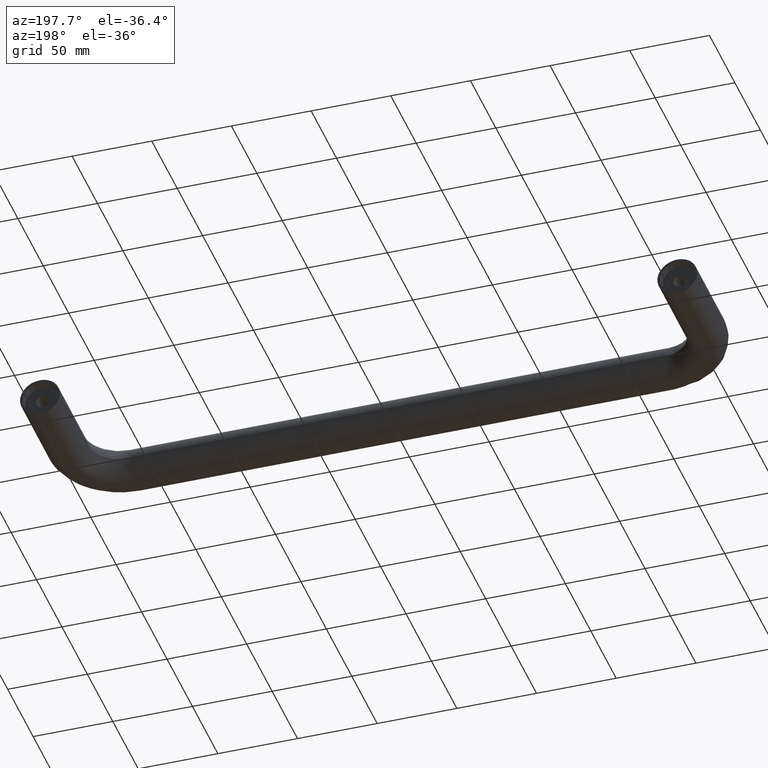
[diagram: clean part render]
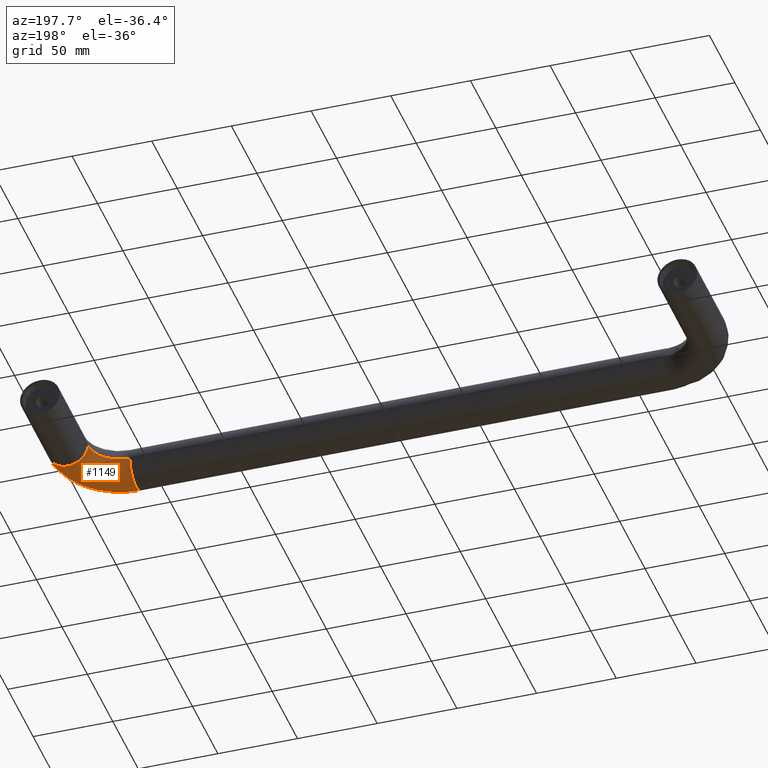
[diagram: same view with one face highlighted and labeled with its STEP entity id]
A machine part, auxiliary view. The second image highlights one B-rep face of the part: STEP entity #1149.
In plain terms, the highlighted face is a freeform B-spline surface patch.
Its self-contained STEP definition (entity closure, byte-faithful):
#698=CARTESIAN_POINT('',(391.395568913528510,-54.999996283961352,-9.067180690720624));
#699=VERTEX_POINT('',#698);
#700=CARTESIAN_POINT('',(387.500000000000000,-55.000000001194060,-8.841173E-016));
#701=VERTEX_POINT('',#700);
#702=CARTESIAN_POINT('',(391.395568913528450,-54.999996283961352,-9.067180690720624));
#703=CARTESIAN_POINT('',(387.500000000000340,-55.000000001155847,-5.370424730694126));
#704=CARTESIAN_POINT('',(387.500000000000000,-55.000000001194060,-8.841173E-016));
#712=(BOUNDED_CURVE()B_SPLINE_CURVE(2,(#702,#703,#704),.UNSPECIFIED.,.F.,.U.)B_SPLINE_CURVE_WITH_KNOTS((3,3),(0.494732677585588,0.666666666666667),.UNSPECIFIED.)CURVE()GEOMETRIC_REPRESENTATION_ITEM()RATIONAL_B_SPLINE_CURVE((0.853699662737177,0.848925101543817,1.0))REPRESENTATION_ITEM(''));
#713=EDGE_CURVE('',#699,#701,#712,.T.);
#778=CARTESIAN_POINT('',(412.499999999987320,-54.999976146165750,-1.530758E-015));
#779=VERTEX_POINT('',#778);
#780=CARTESIAN_POINT('',(412.499999999987320,-54.999976146165750,-1.530758E-015));
#781=CARTESIAN_POINT('',(412.499999999987380,-54.999976146149322,-12.499999999999881));
#782=CARTESIAN_POINT('',(399.999999999993970,-54.999988073625268,-12.499999999999600));
#783=CARTESIAN_POINT('',(395.013006561992480,-54.999992832204789,-12.499999999999490));
#784=CARTESIAN_POINT('',(391.395568913528510,-54.999996283961352,-9.067180690720623));
#792=(BOUNDED_CURVE()B_SPLINE_CURVE(2,(#780,#781,#782,#783,#784),.UNSPECIFIED.,.F.,.U.)B_SPLINE_CURVE_WITH_KNOTS((3,2,3),(0.0,0.333333333333333,0.494732677585588),.UNSPECIFIED.)CURVE()GEOMETRIC_REPRESENTATION_ITEM()RATIONAL_B_SPLINE_CURVE((1.0,0.707106781186547,1.0,0.858181679642730,0.853699662737177))REPRESENTATION_ITEM(''));
#793=EDGE_CURVE('',#779,#699,#792,.T.);
#1005=CARTESIAN_POINT('',(367.500000000913420,-99.999999999999972,-1.530758E-015));
#1006=VERTEX_POINT('',#1005);
#1007=CARTESIAN_POINT('',(367.500000000913420,-99.999999999999972,-1.530758E-015));
#1008=CARTESIAN_POINT('',(412.500023853837320,-99.999999999086597,-1.530758E-015));
#1009=CARTESIAN_POINT('',(412.499999999987320,-54.999976146165757,-1.530758E-015));
#1017=(BOUNDED_CURVE()B_SPLINE_CURVE(2,(#1007,#1008,#1009),.UNSPECIFIED.,.F.,.U.)B_SPLINE_CURVE_WITH_KNOTS((3,3),(-1.734750791637311,-0.265248657532898),.UNSPECIFIED.)CURVE()GEOMETRIC_REPRESENTATION_ITEM()RATIONAL_B_SPLINE_CURVE((0.889029723568967,0.628638848619577,0.889029918779442))REPRESENTATION_ITEM(''));
#1018=EDGE_CURVE('',#1006,#779,#1017,.T.);
#1023=CARTESIAN_POINT('',(367.500000000067080,-75.0,-8.841173E-016));
#1024=VERTEX_POINT('',#1023);
#1025=CARTESIAN_POINT('',(367.500000000066960,-74.999999999999986,-1.768235E-015));
#1026=CARTESIAN_POINT('',(387.499999998806120,-74.999999999933010,-1.737917E-015));
#1027=CARTESIAN_POINT('',(387.500000000000110,-55.000000001194067,-1.768235E-015));
#1035=(BOUNDED_CURVE()B_SPLINE_CURVE(2,(#1025,#1026,#1027),.UNSPECIFIED.,.F.,.U.)B_SPLINE_CURVE_WITH_KNOTS((3,3),(-1.734750791654919,-0.265249208403636),.UNSPECIFIED.)CURVE()GEOMETRIC_REPRESENTATION_ITEM()RATIONAL_B_SPLINE_CURVE((0.889029723575208,0.628638946228914,0.889029723554456))REPRESENTATION_ITEM(''));
#1036=EDGE_CURVE('',#1024,#701,#1035,.T.);
#1084=CARTESIAN_POINT('',(366.109257524780280,-74.951587289426854,0.349459221148219));
#1085=CARTESIAN_POINT('',(389.050756083216300,-76.550744089714101,0.349459221148219));
#1086=CARTESIAN_POINT('',(387.451586515442730,-53.609246421250155,0.349459221148219));
#1087=CARTESIAN_POINT('',(366.109257524780330,-74.951587289426868,0.175747192080911));
#1088=CARTESIAN_POINT('',(389.050756083216240,-76.550744089714087,0.175747192080911));
#1089=CARTESIAN_POINT('',(387.451586515442610,-53.609246421250148,0.175747192080911));
#1090=CARTESIAN_POINT('',(366.109257524780110,-74.951587289426854,-12.499999999999996));
#1091=CARTESIAN_POINT('',(389.050756083216240,-76.550744089714115,-12.500000000000000));
#1092=CARTESIAN_POINT('',(387.451586515442560,-53.609246421250148,-12.499999999999996));
#1093=CARTESIAN_POINT('',(365.240043477767760,-87.421329345318640,-12.499999999999995));
#1094=CARTESIAN_POINT('',(402.519978635226380,-90.019959145785421,-12.500000000000000));
#1095=CARTESIAN_POINT('',(399.921328087594360,-52.740025434531489,-12.499999999999995));
#1096=CARTESIAN_POINT('',(364.370829430755290,-99.891071401210439,-12.499999999999995));
#1097=CARTESIAN_POINT('',(415.989201187236630,-103.489174201856730,-12.499999999999995));
#1098=CARTESIAN_POINT('',(412.391069659745940,-51.870804447812844,-12.499999999999995));
#1099=CARTESIAN_POINT('',(364.370829430755290,-99.891071401210411,0.175747192080917));
#1100=CARTESIAN_POINT('',(415.989201187236690,-103.489174201856740,0.175747192080917));
#1101=CARTESIAN_POINT('',(412.391069659745940,-51.870804447812844,0.175747192080917));
#1102=CARTESIAN_POINT('',(364.370829430755290,-99.891071401210425,0.349459221148228));
#1103=CARTESIAN_POINT('',(415.989201187236570,-103.489174201856730,0.349459221148228));
#1104=CARTESIAN_POINT('',(412.391069659745940,-51.870804447812830,0.349459221148228));
#1112=(BOUNDED_SURFACE()B_SPLINE_SURFACE(2,2,((#1084,#1087,#1090,#1093,#1096,#1099,#1102),(#1085,#1088,#1091,#1094,#1097,#1100,#1103),(#1086,#1089,#1092,#1095,#1098,#1101,#1104)),.UNSPECIFIED.,.F.,.F.,.U.)B_SPLINE_SURFACE_WITH_KNOTS((3,3),(3,1,2,1,3),(0.0,82.006857860211838),(0.0,0.414213562373087,21.124891681027890,41.835569799682702,42.249783362055787),.UNSPECIFIED.)GEOMETRIC_REPRESENTATION_ITEM()RATIONAL_B_SPLINE_SURFACE(((0.927077721827456,0.921709914046686,0.647951717227393,0.916342106265916,0.647951717227393,0.921709914046686,0.927077721827457),(0.608371424908196,0.604848936133702,0.425202008634512,0.601326447359208,0.425202008634512,0.604848936133702,0.608371424908196),(0.927077956886786,0.921710147745015,0.647951881514694,0.916342338603244,0.647951881514694,0.921710147745015,0.927077956886787)))REPRESENTATION_ITEM('')SURFACE());
#1113=ORIENTED_EDGE('',*,*,#1018,.F.);
#1114=CARTESIAN_POINT('',(367.500000000516020,-88.263108096102457,-12.476684897586420));
#1115=VERTEX_POINT('',#1114);
#1116=CARTESIAN_POINT('',(367.500000000913420,-99.999999999999972,-1.530758E-015));
#1117=CARTESIAN_POINT('',(367.500000000913300,-99.999999999999986,-11.758824559807481));
#1118=CARTESIAN_POINT('',(367.500000000516080,-88.263108096102457,-12.476684897586493));
#1126=(BOUNDED_CURVE()B_SPLINE_CURVE(2,(#1116,#1117,#1118),.UNSPECIFIED.,.F.,.U.)B_SPLINE_CURVE_WITH_KNOTS((3,3),(0.0,0.319110591394112),.UNSPECIFIED.)CURVE()GEOMETRIC_REPRESENTATION_ITEM()RATIONAL_B_SPLINE_CURVE((1.0,0.719604015187342,0.976072001603295))REPRESENTATION_ITEM(''));
#1127=EDGE_CURVE('',#1006,#1115,#1126,.T.);
#1128=ORIENTED_EDGE('',*,*,#1127,.T.);
#1129=CARTESIAN_POINT('',(367.500000000516080,-88.263108096102457,-12.476684897586493));
#1130=CARTESIAN_POINT('',(367.500000000503180,-87.881910219086038,-12.500000000000000));
#1131=CARTESIAN_POINT('',(367.500000000490220,-87.499999999999986,-12.500000000000000));
#1132=CARTESIAN_POINT('',(367.500000000067080,-75.0,-12.499999999999998));
#1133=CARTESIAN_POINT('',(367.500000000067080,-75.0,-8.841173E-016));
#1141=(BOUNDED_CURVE()B_SPLINE_CURVE(2,(#1129,#1130,#1131,#1132,#1133),.UNSPECIFIED.,.F.,.U.)B_SPLINE_CURVE_WITH_KNOTS((3,2,3),(0.319110591394112,0.333333333333333,0.666666666666667),.UNSPECIFIED.)CURVE()GEOMETRIC_REPRESENTATION_ITEM()RATIONAL_B_SPLINE_CURVE((0.976072001603295,0.987502765999206,1.0,0.707106781186547,1.0))REPRESENTATION_ITEM(''));
#1142=EDGE_CURVE('',#1115,#1024,#1141,.T.);
#1143=ORIENTED_EDGE('',*,*,#1142,.T.);
#1144=ORIENTED_EDGE('',*,*,#1036,.T.);
#1145=ORIENTED_EDGE('',*,*,#713,.F.);
#1146=ORIENTED_EDGE('',*,*,#793,.F.);
#1147=EDGE_LOOP('',(#1113,#1128,#1143,#1144,#1145,#1146));
#1148=FACE_OUTER_BOUND('',#1147,.T.);
#1149=ADVANCED_FACE('',(#1148),#1112,.T.);